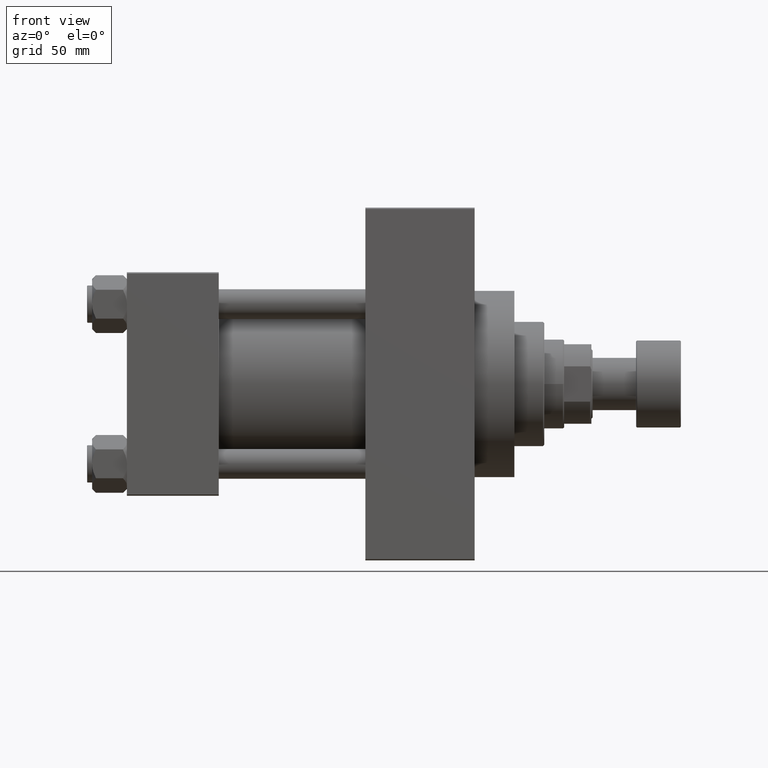
[diagram: clean part render]
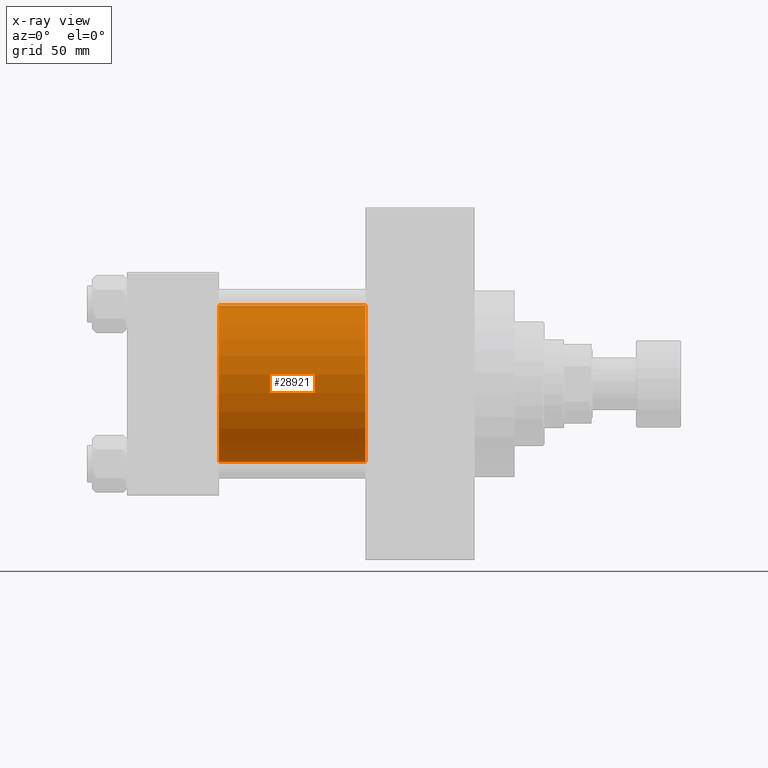
[diagram: x-ray — body ghosted, one internal face saturated and labeled with its STEP entity id]
A machine part, front view, then the same camera in x-ray: the body is ghosted and one INTERNAL B-rep face — a face not visible from any outside direction — is saturated and labeled: STEP entity #28921.
In plain terms, the highlighted cylindrical surface (partial cylindrical patch) has radius 31.5 mm, axis along (-1, -0, -0).
Its self-contained STEP definition (entity closure, byte-faithful):
#242 = CARTESIAN_POINT ( 'NONE',  ( 96.00000000000000000, -2.602085213965210642E-15, 0.000000000000000000 ) ) ;
#265 = CIRCLE ( 'NONE', #12227, 31.50000000000000000 ) ;
#1904 = LINE ( 'NONE', #20669, #8661 ) ;
#3601 = DIRECTION ( 'NONE',  ( 1.000000000000000000, 0.000000000000000000, 0.000000000000000000 ) ) ;
#3693 = CARTESIAN_POINT ( 'NONE',  ( 37.00000000000000000, 1.255552203348951850E-15, -31.50000000000000000 ) ) ;
#4345 = AXIS2_PLACEMENT_3D ( 'NONE', #242, #15488, #11979 ) ;
#6834 = EDGE_CURVE ( 'NONE', #21731, #32553, #265, .T. ) ;
#7716 = EDGE_LOOP ( 'NONE', ( #23299, #44901, #42283, #13998 ) ) ;
#7982 = EDGE_CURVE ( 'NONE', #12180, #32553, #45787, .T. ) ;
#8661 = VECTOR ( 'NONE', #21832, 1000.000000000000000 ) ;
#9133 = CARTESIAN_POINT ( 'NONE',  ( 96.00000000000000000, -2.602085213965210642E-15, 31.50000000000000000 ) ) ;
#11597 = CARTESIAN_POINT ( 'NONE',  ( 37.00000000000000000, -2.602085213965210642E-15, 0.000000000000000000 ) ) ;
#11816 = CARTESIAN_POINT ( 'NONE',  ( 96.00000000000000000, -2.602085213965210642E-15, 0.000000000000000000 ) ) ;
#11979 = DIRECTION ( 'NONE',  ( 0.000000000000000000, 0.000000000000000000, -1.000000000000000000 ) ) ;
#12180 = VERTEX_POINT ( 'NONE', #20737 ) ;
#12227 = AXIS2_PLACEMENT_3D ( 'NONE', #11597, #3601, #34597 ) ;
#13998 = ORIENTED_EDGE ( 'NONE', *, *, #23259, .F. ) ;
#14161 = CARTESIAN_POINT ( 'NONE',  ( 37.00000000000000000, -2.602085213965210642E-15, 31.50000000000000000 ) ) ;
#15488 = DIRECTION ( 'NONE',  ( 1.000000000000000000, 0.000000000000000000, 0.000000000000000000 ) ) ;
#15790 = DIRECTION ( 'NONE',  ( -1.000000000000000000, -0.000000000000000000, -0.000000000000000000 ) ) ;
#17050 = VECTOR ( 'NONE', #15790, 1000.000000000000000 ) ;
#18813 = CYLINDRICAL_SURFACE ( 'NONE', #23145, 31.50000000000000000 ) ;
#19056 = VERTEX_POINT ( 'NONE', #9133 ) ;
#20669 = CARTESIAN_POINT ( 'NONE',  ( 96.00000000000000000, -2.602085213965210642E-15, 31.50000000000000000 ) ) ;
#20737 = CARTESIAN_POINT ( 'NONE',  ( 96.00000000000000000, 1.255552203348951850E-15, -31.50000000000000000 ) ) ;
#21731 = VERTEX_POINT ( 'NONE', #14161 ) ;
#21832 = DIRECTION ( 'NONE',  ( -1.000000000000000000, -0.000000000000000000, -0.000000000000000000 ) ) ;
#22334 = FACE_OUTER_BOUND ( 'NONE', #7716, .T. ) ;
#23145 = AXIS2_PLACEMENT_3D ( 'NONE', #11816, #30091, #37586 ) ;
#23259 = EDGE_CURVE ( 'NONE', #19056, #21731, #1904, .T. ) ;
#23299 = ORIENTED_EDGE ( 'NONE', *, *, #37112, .T. ) ;
#28921 = ADVANCED_FACE ( 'NONE', ( #22334 ), #18813, .F. ) ;
#30091 = DIRECTION ( 'NONE',  ( -1.000000000000000000, -0.000000000000000000, -0.000000000000000000 ) ) ;
#32553 = VERTEX_POINT ( 'NONE', #3693 ) ;
#34045 = CARTESIAN_POINT ( 'NONE',  ( 96.00000000000000000, 1.255552203348951850E-15, -31.50000000000000000 ) ) ;
#34597 = DIRECTION ( 'NONE',  ( 0.000000000000000000, 0.000000000000000000, -1.000000000000000000 ) ) ;
#37112 = EDGE_CURVE ( 'NONE', #19056, #12180, #49048, .T. ) ;
#37586 = DIRECTION ( 'NONE',  ( 0.000000000000000000, 0.000000000000000000, 1.000000000000000000 ) ) ;
#42283 = ORIENTED_EDGE ( 'NONE', *, *, #6834, .F. ) ;
#44901 = ORIENTED_EDGE ( 'NONE', *, *, #7982, .T. ) ;
#45787 = LINE ( 'NONE', #34045, #17050 ) ;
#49048 = CIRCLE ( 'NONE', #4345, 31.50000000000000000 ) ;